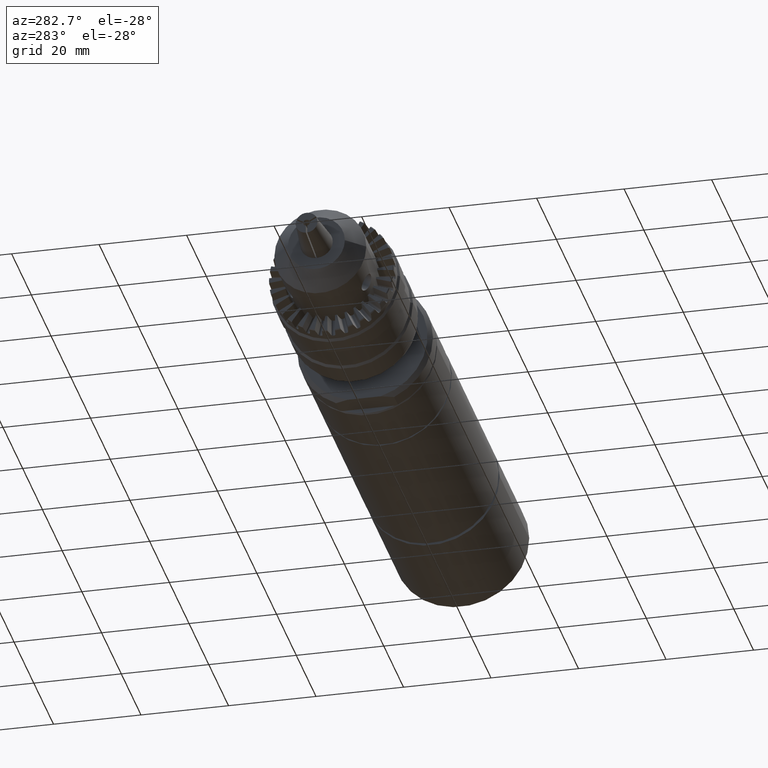
[diagram: clean part render]
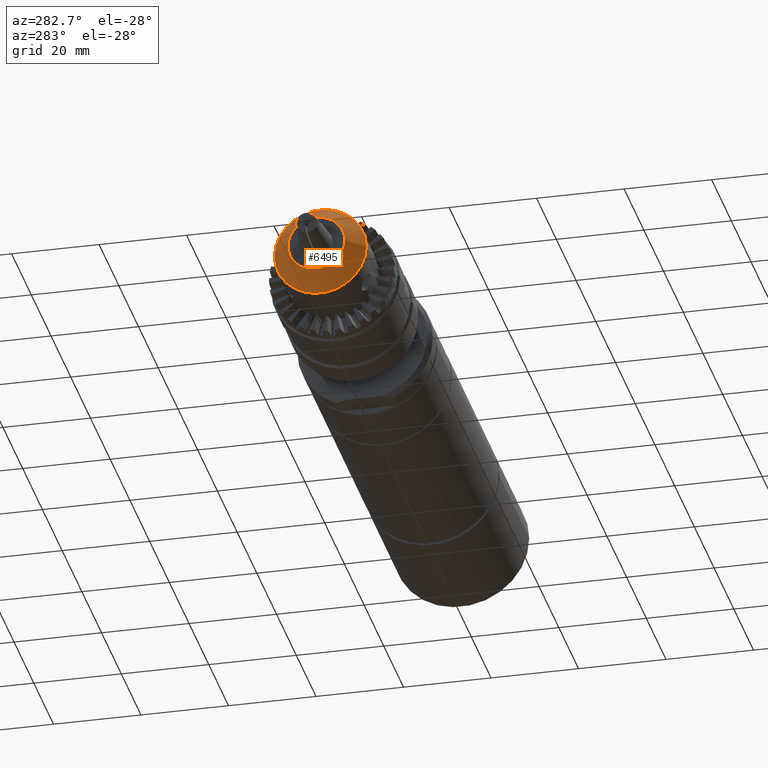
[diagram: same view with one face highlighted and labeled with its STEP entity id]
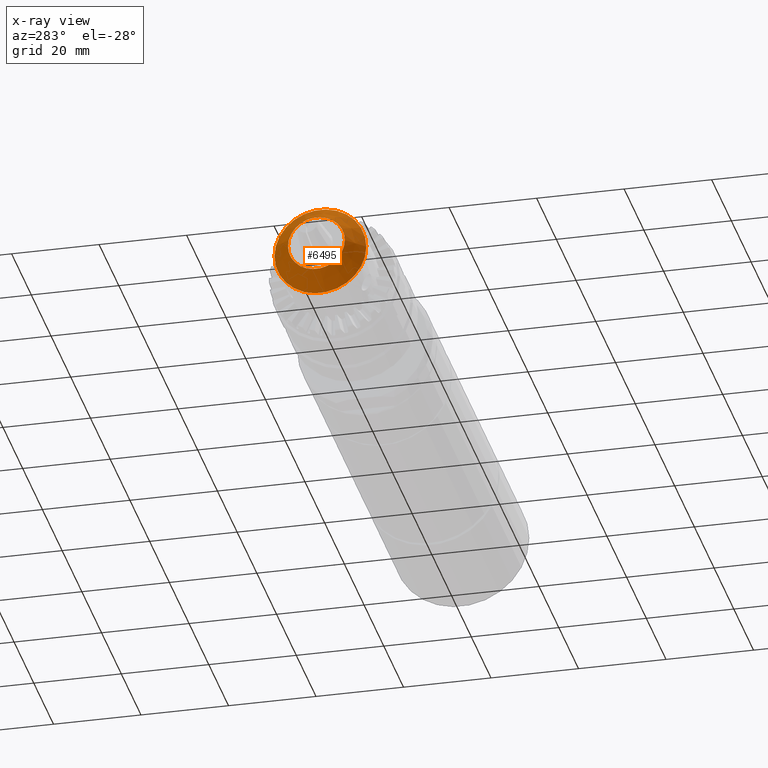
[diagram: x-ray of the same camera — body ghosted, the highlighted face saturated]
A machine part, auxiliary view. The second image highlights one B-rep face of the part: STEP entity #6495.
The next image is the same camera in x-ray: the body ghosted, the highlighted face saturated — about 0% of this face is hidden behind the body in this view.
In plain terms, the highlighted conical surface has half-angle 45 deg.
Its self-contained STEP definition (entity closure, byte-faithful):
#231=CONICAL_SURFACE('',#6927,8.5,0.785398163397449);
#488=LINE('',#10027,#983);
#983=VECTOR('',#7989,8.5);
#1811=FACE_OUTER_BOUND('',#2175,.T.);
#2175=EDGE_LOOP('',(#4880,#4881,#4882,#4883,#4884,#4885));
#2480=CIRCLE('',#6928,10.5);
#2481=CIRCLE('',#6929,10.5);
#2482=CIRCLE('',#6930,6.5);
#2483=CIRCLE('',#6931,6.5);
#2885=VERTEX_POINT('',#10022);
#2886=VERTEX_POINT('',#10023);
#2887=VERTEX_POINT('',#10026);
#2888=VERTEX_POINT('',#10028);
#3619=EDGE_CURVE('',#2885,#2886,#2480,.T.);
#3620=EDGE_CURVE('',#2886,#2885,#2481,.T.);
#3621=EDGE_CURVE('',#2886,#2887,#488,.T.);
#3622=EDGE_CURVE('',#2887,#2888,#2482,.T.);
#3623=EDGE_CURVE('',#2888,#2887,#2483,.T.);
#4880=ORIENTED_EDGE('',*,*,#3619,.F.);
#4881=ORIENTED_EDGE('',*,*,#3620,.F.);
#4882=ORIENTED_EDGE('',*,*,#3621,.T.);
#4883=ORIENTED_EDGE('',*,*,#3622,.T.);
#4884=ORIENTED_EDGE('',*,*,#3623,.T.);
#4885=ORIENTED_EDGE('',*,*,#3621,.F.);
#6495=ADVANCED_FACE('',(#1811),#231,.T.);
#6927=AXIS2_PLACEMENT_3D('',#10021,#7983,#7984);
#6928=AXIS2_PLACEMENT_3D('',#10024,#7985,#7986);
#6929=AXIS2_PLACEMENT_3D('',#10025,#7987,#7988);
#6930=AXIS2_PLACEMENT_3D('',#10029,#7990,#7991);
#6931=AXIS2_PLACEMENT_3D('',#10030,#7992,#7993);
#7983=DIRECTION('center_axis',(1.,2.45022473231302E-16,-9.49410759657492E-16));
#7984=DIRECTION('ref_axis',(-6.12323399573692E-17,1.,-8.38142190496947E-16));
#7985=DIRECTION('center_axis',(1.,2.45022473231302E-16,-9.49410759657492E-16));
#7986=DIRECTION('ref_axis',(-6.12323399573692E-17,1.,-8.38142190496947E-16));
#7987=DIRECTION('center_axis',(1.,2.45022473231302E-16,-9.49410759657492E-16));
#7988=DIRECTION('ref_axis',(-6.12323399573692E-17,1.,-8.38142190496947E-16));
#7989=DIRECTION('',(-0.707106781186547,0.707106781186548,1.65274365409895E-16));
#7990=DIRECTION('center_axis',(1.,2.45022473231302E-16,-9.49410759657492E-16));
#7991=DIRECTION('ref_axis',(-6.12323399573692E-17,1.,-8.38142190496947E-16));
#7992=DIRECTION('center_axis',(1.,2.45022473231302E-16,-9.49410759657492E-16));
#7993=DIRECTION('ref_axis',(-6.12323399573692E-17,1.,-8.38142190496947E-16));
#10021=CARTESIAN_POINT('Origin',(-115.095626420429,2.94026967877563E-15,
-1.13929291158899E-14));
#10022=CARTESIAN_POINT('',(-113.095626420429,10.5,-2.20922436354228E-14));
#10023=CARTESIAN_POINT('',(-113.095626420429,-10.5,-5.77713677409167E-15));
#10024=CARTESIAN_POINT('Origin',(-113.095626420429,3.43031462523823E-15,
-1.32917506352049E-14));
#10025=CARTESIAN_POINT('Origin',(-113.095626420429,3.43031462523823E-15,
-1.32917506352049E-14));
#10026=CARTESIAN_POINT('',(-117.095626420429,-6.5,-4.84220377779055E-15));
#10027=CARTESIAN_POINT('',(-115.095626420429,-8.5,-5.30967027594111E-15));
#10028=CARTESIAN_POINT('',(-117.095626420429,6.5,-1.49420318348051E-14));
#10029=CARTESIAN_POINT('Origin',(-117.095626420429,2.45022473231302E-15,
-9.49410759657492E-15));
#10030=CARTESIAN_POINT('Origin',(-117.095626420429,2.45022473231302E-15,
-9.49410759657492E-15));